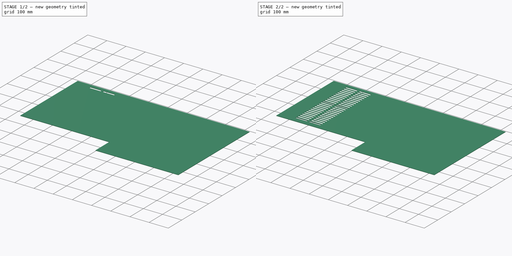
[diagram: build sequence overview — one tinted view per stage of 2, left to right]
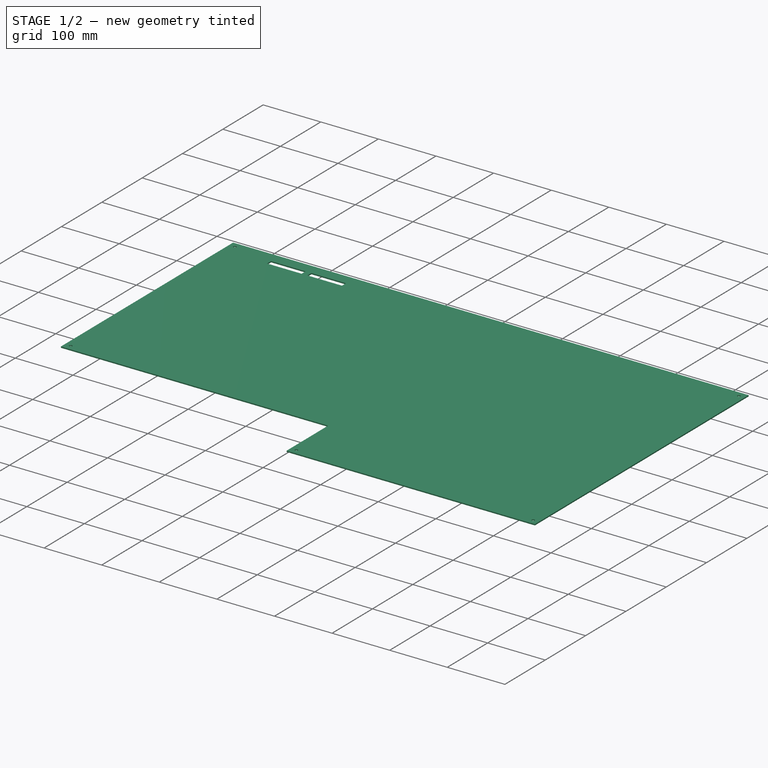
[diagram: stage 1 of 2 — iso view after this stage's code; geometry added in this stage tinted green]
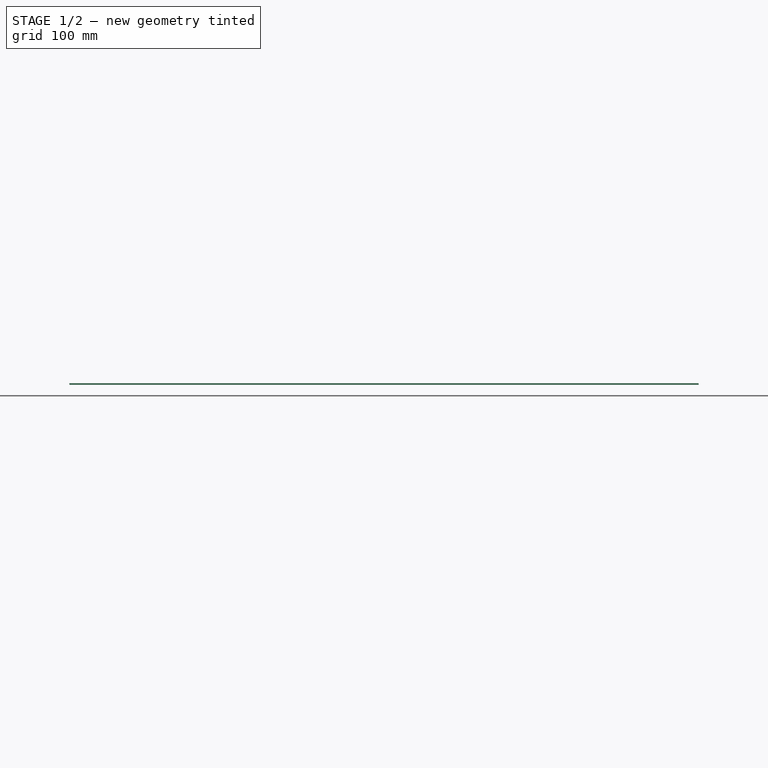
[diagram: stage 1 of 2 — front view after this stage's code; geometry added in this stage tinted green]
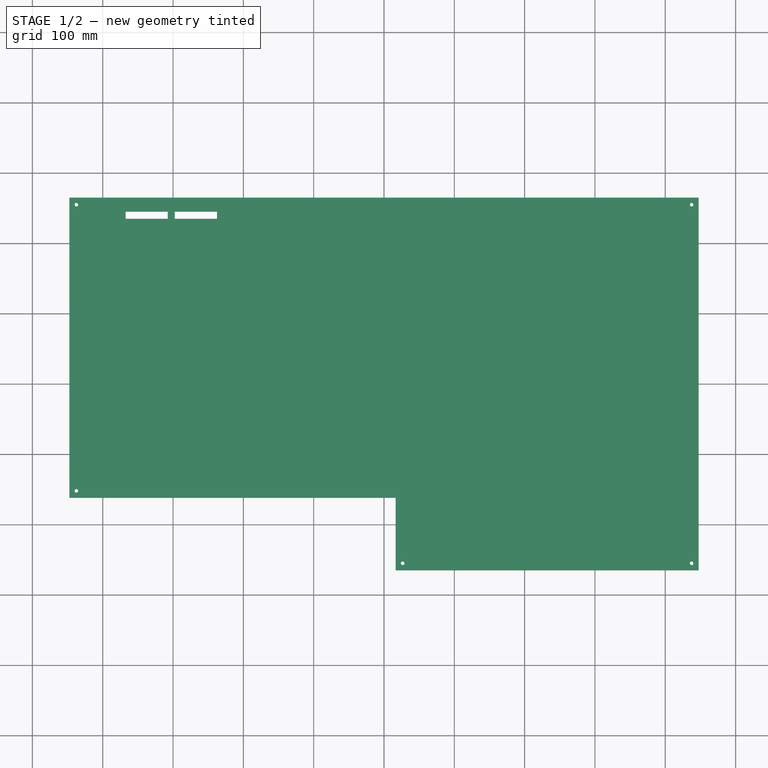
[diagram: stage 1 of 2 — top view after this stage's code; geometry added in this stage tinted green]
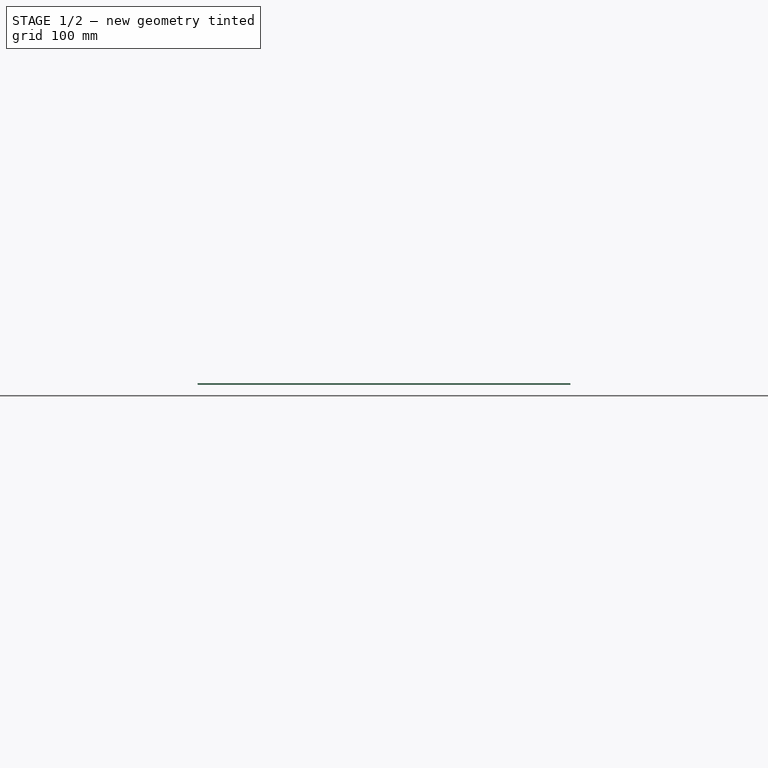
[diagram: stage 1 of 2 — right view after this stage's code; geometry added in this stage tinted green]
FCSTD DOCUMENT  (FreeCAD 0.16R6698 (Git))
Label: Side_Plate
License: All rights reserved
LicenseURL: http://en.wikipedia.org/wiki/All_rights_reserved
objects: Sketcher::SketchObject×2, PartDesign::Pad×1, PartDesign::Pocket×1, PartDesign::LinearPattern×1
note: 7 computed .brp shape members not serialized (recipe doc carries the construction recipe); baked Part::Feature solids carry a one-line shape summary decoded from their .brp

FEATURE [Sketcher::SketchObject] Sketch
  sketch-geometry (11):
    g0: LineSegment StartX=16.5 StartY=-162 StartZ=0 EndX=-447.5 EndY=-162 EndZ=0
    g1: LineSegment StartX=-447.5 StartY=-162 StartZ=0 EndX=-447.5 EndY=265 EndZ=0
    g2: LineSegment StartX=-447.5 StartY=265 StartZ=0 EndX=447.5 EndY=265 EndZ=0
    g3: LineSegment StartX=447.5 StartY=265 StartZ=0 EndX=447.5 EndY=-265 EndZ=0
    g4: LineSegment StartX=447.5 StartY=-265 StartZ=0 EndX=16.5 EndY=-265 EndZ=0
    g5: LineSegment StartX=16.5 StartY=-162 StartZ=0 EndX=16.5 EndY=-265 EndZ=0
    g6: Circle CenterX=-437.5 CenterY=255 CenterZ=0 NormalX=0 NormalY=0 NormalZ=1 Radius=2.5
    g7: Circle CenterX=-437.5 CenterY=-152 CenterZ=0 NormalX=0 NormalY=0 NormalZ=1 Radius=2.5
    g8: Circle CenterX=26.5 CenterY=-255 CenterZ=0 NormalX=0 NormalY=0 NormalZ=1 Radius=2.5
    g9: Circle CenterX=437.5 CenterY=-255 CenterZ=0 NormalX=0 NormalY=0 NormalZ=1 Radius=2.5
    g10: Circle CenterX=437.5 CenterY=255 CenterZ=0 NormalX=0 NormalY=0 NormalZ=1 Radius=2.5
  constraints (30):
    c: Coincident(g0,g1)
    c: Horizontal(g0)
    c: Vertical(g1)
    c: Coincident(g2,g3)
    c: Coincident(g3,g4)
    c: Horizontal(g2)
    c: Horizontal(g4)
    c: Vertical(g3)
    c: Coincident(g5,g0)
    c: Coincident(g5,g4)
    c: Vertical(g5)
    c: Coincident(g2,g1)
    c: DistanceX(g2,g2) = 895
    c: DistanceY(g3,g3) = 530
    c: DistanceY(g1,g1) = 427
    c: DistanceX(g4,g4) = 431
    c: DistanceX(g1,g-1) = 447.5
    c: DistanceY(g-1,g2) = 265
    c: Radius(g10) = 2.5
    c: Equal(g10, g6-g9) x4
    c: DistanceX(g1,g6) = 10
    c: DistanceY(g6,g1) = 10
    c: DistanceX(g0,g7) = 10
    c: DistanceY(g0,g7) = 10
    c: DistanceX(g4,g8) = 10
    c: DistanceY(g4,g8) = 10
    c: DistanceX(g9,g3) = 10
    c: DistanceY(g3,g9) = 10
    c: DistanceX(g10,g2) = 10
    c: DistanceY(g10,g2) = 10
FEATURE [PartDesign::Pad] Pad
  Length = 2
  Length2 = 100
  Sketch = -> Sketch
  Type = 0
FEATURE [Sketcher::SketchObject] Sketch001
  ExternalGeometry = -> [Pad]
  Placement = pos=(0,0,2) rot=(0,0,1;0rad)
  Support = -> Pad [Face13]
  sketch-geometry (8):
    g0: LineSegment StartX=-367.5 StartY=245 StartZ=0 EndX=-307.5 EndY=245 EndZ=0
    g1: LineSegment StartX=-237.5 StartY=245 StartZ=0 EndX=-237.5 EndY=235 EndZ=0
    g2: LineSegment StartX=-237.5 StartY=235 StartZ=0 EndX=-297.5 EndY=235 EndZ=0
    g3: LineSegment StartX=-367.5 StartY=235 StartZ=0 EndX=-367.5 EndY=245 EndZ=0
    g4: LineSegment StartX=-307.5 StartY=245 StartZ=0 EndX=-307.5 EndY=235 EndZ=0
    g5: LineSegment StartX=-297.5 StartY=245 StartZ=0 EndX=-297.5 EndY=235 EndZ=0
    g6: LineSegment StartX=-297.5 StartY=245 StartZ=0 EndX=-237.5 EndY=245 EndZ=0
    g7: LineSegment StartX=-307.5 StartY=235 StartZ=0 EndX=-367.5 EndY=235 EndZ=0
  constraints (22):
    c: Coincident(g6,g1)
    c: Coincident(g1,g2)
    c: Coincident(g7,g3)
    c: Coincident(g3,g0)
    c: Horizontal(g0)
    c: Horizontal(g2)
    c: Vertical(g1)
    c: Vertical(g3)
    c: DistanceY(g0,g-4) = 20
    c: DistanceY(g3,g3) = 10
    c: DistanceX(g0,g6) = 130
    c: DistanceX(g-4,g0) = 80
    c: Vertical(g4)
    c: Vertical(g5)
    c: Coincident(g0,g4)
    c: Coincident(g6,g5)
    c: Tangent(g0,g6)
    c: Coincident(g2,g5)
    c: Coincident(g7,g4)
    c: Tangent(g2,g7)
    c: DistanceX(g0,g0) = 60
    c: DistanceX(g0,g5) = 10
FEATURE [PartDesign::Pocket] Pocket
  Length = 5
  Sketch = -> Sketch001
  Type = 0
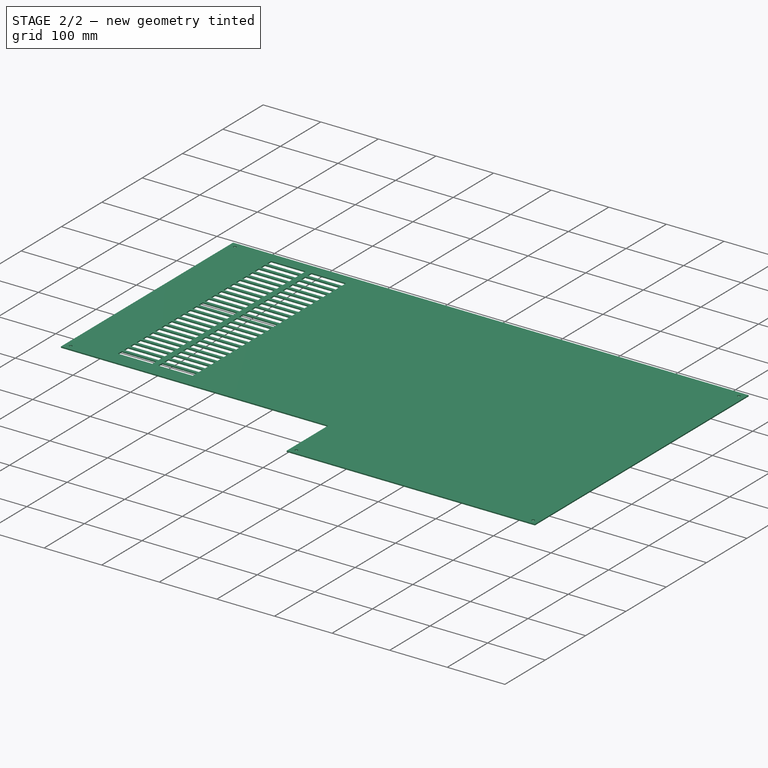
[diagram: stage 2 of 2 — iso view after this stage's code; geometry added in this stage tinted green]
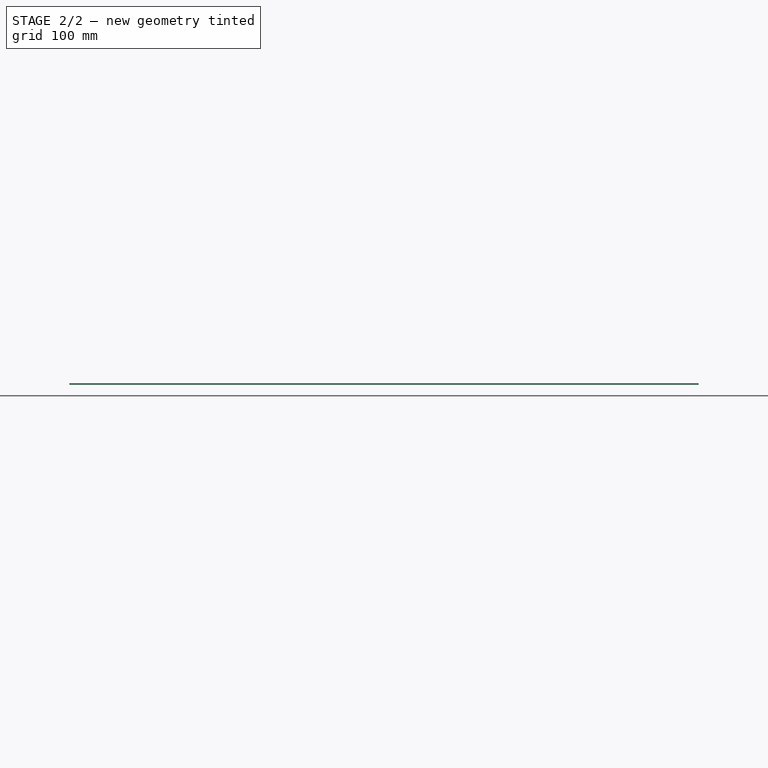
[diagram: stage 2 of 2 — front view after this stage's code; geometry added in this stage tinted green]
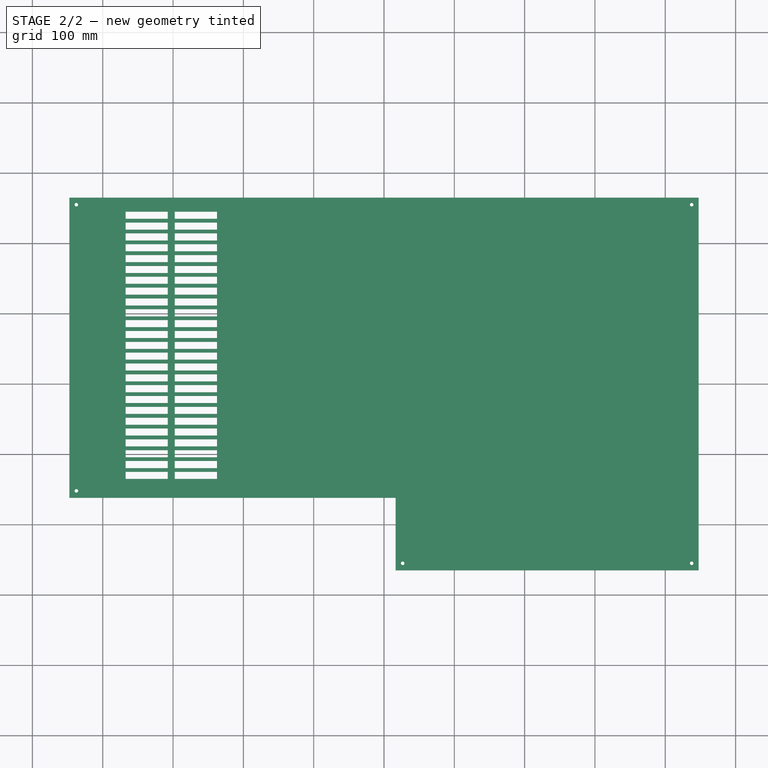
[diagram: stage 2 of 2 — top view after this stage's code; geometry added in this stage tinted green]
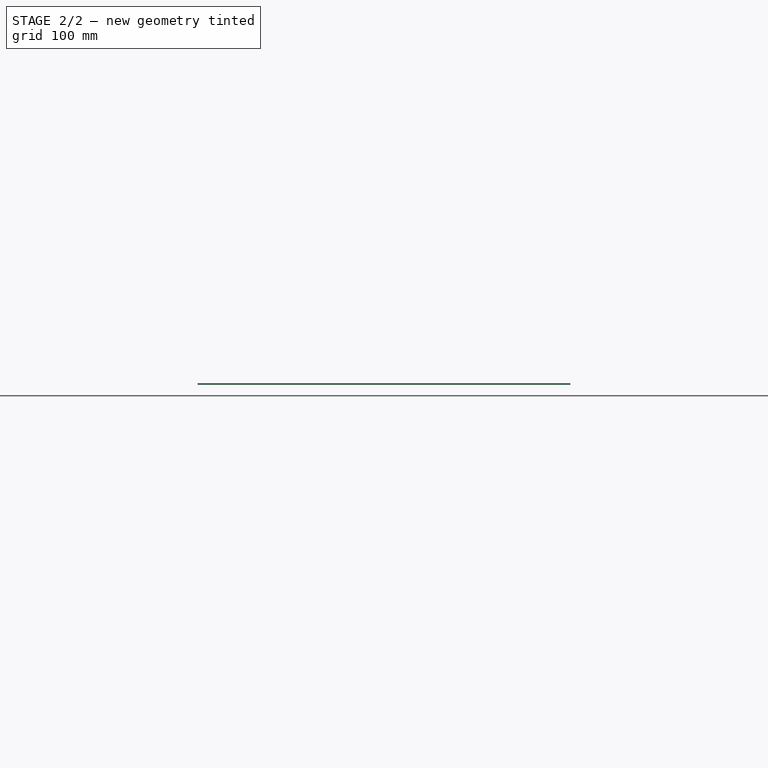
[diagram: stage 2 of 2 — right view after this stage's code; geometry added in this stage tinted green]
FEATURE [PartDesign::LinearPattern] LinearPattern
  Direction = -> Sketch001 [V_Axis]
  Length = 370
  Occurrences = 25
  Originals = -> [Pocket]
  Reversed = true
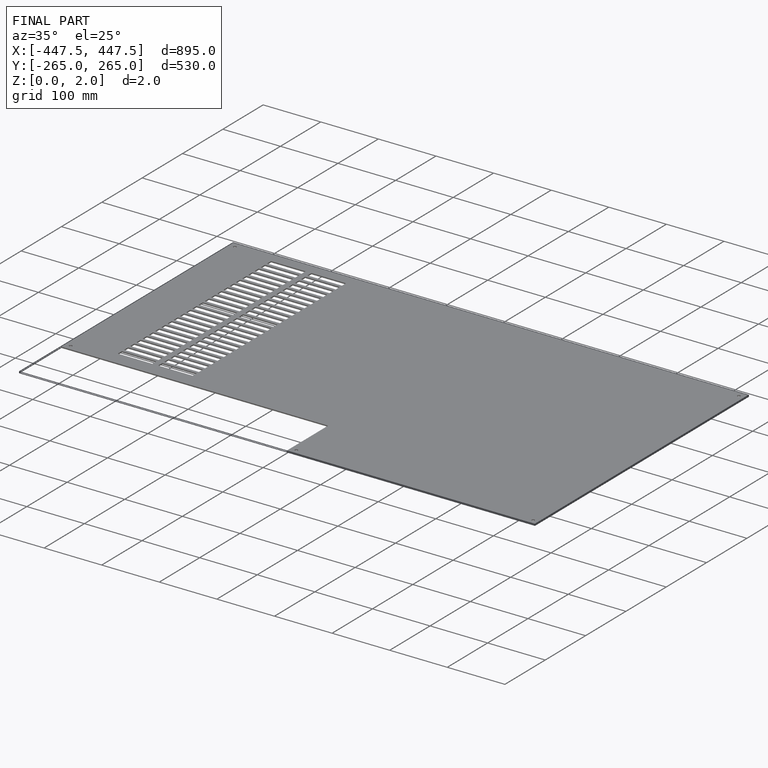
[diagram: finished part — iso view with bounding-box wireframe]
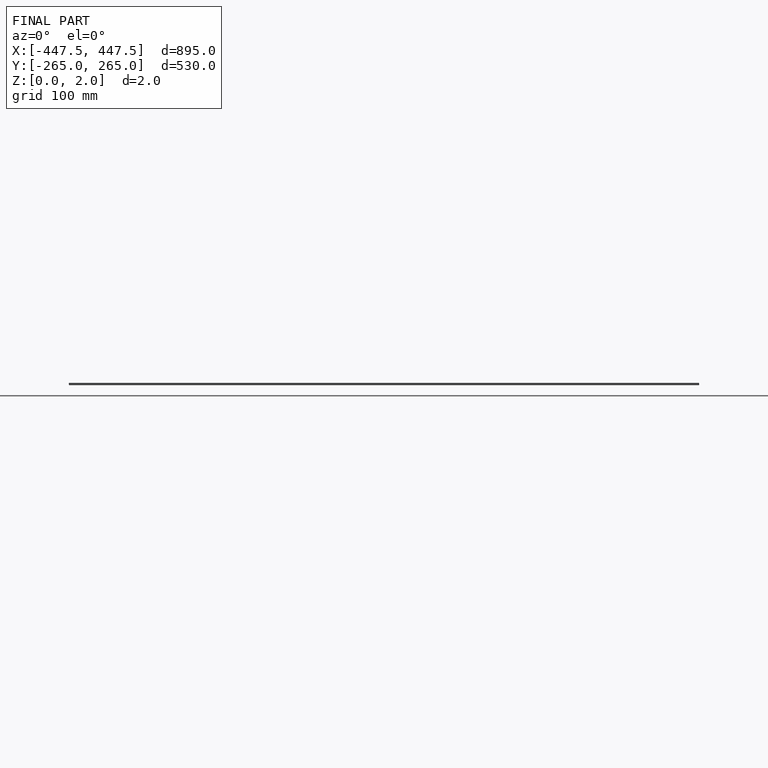
[diagram: finished part — front view with bounding-box wireframe]
